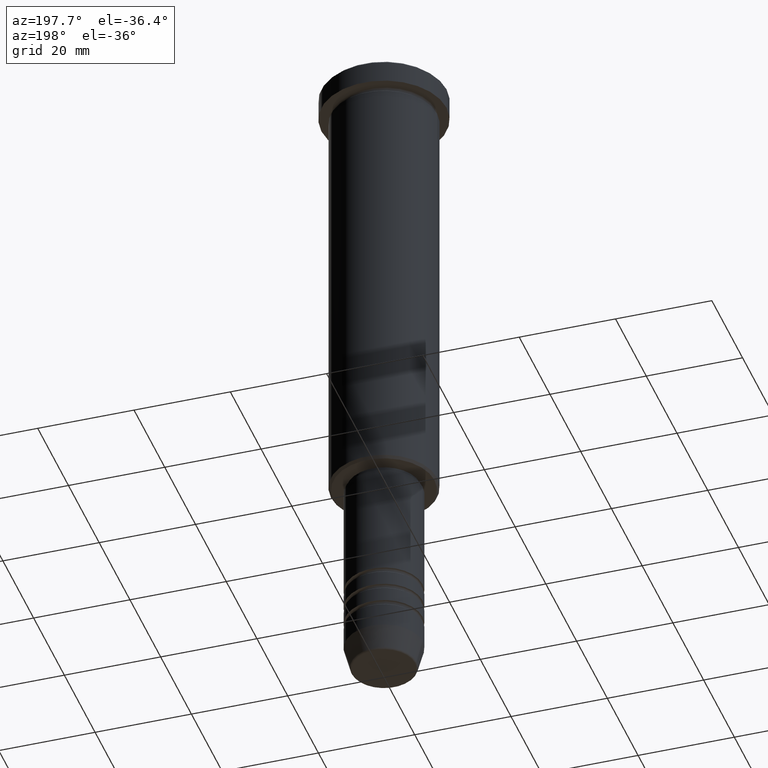
[diagram: clean part render]
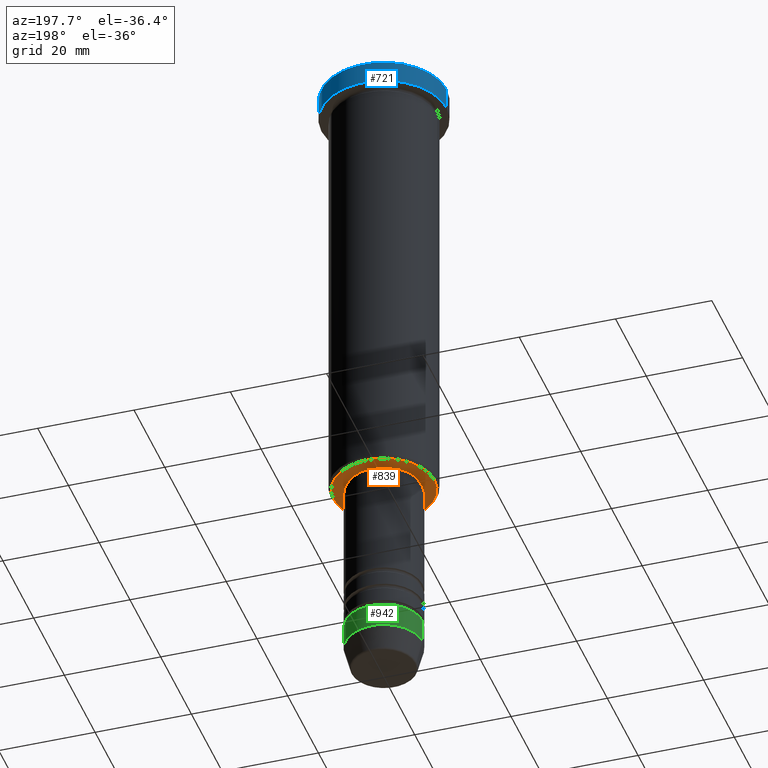
[diagram: same view with three faces highlighted in distinct colors, each labeled with its STEP entity id]
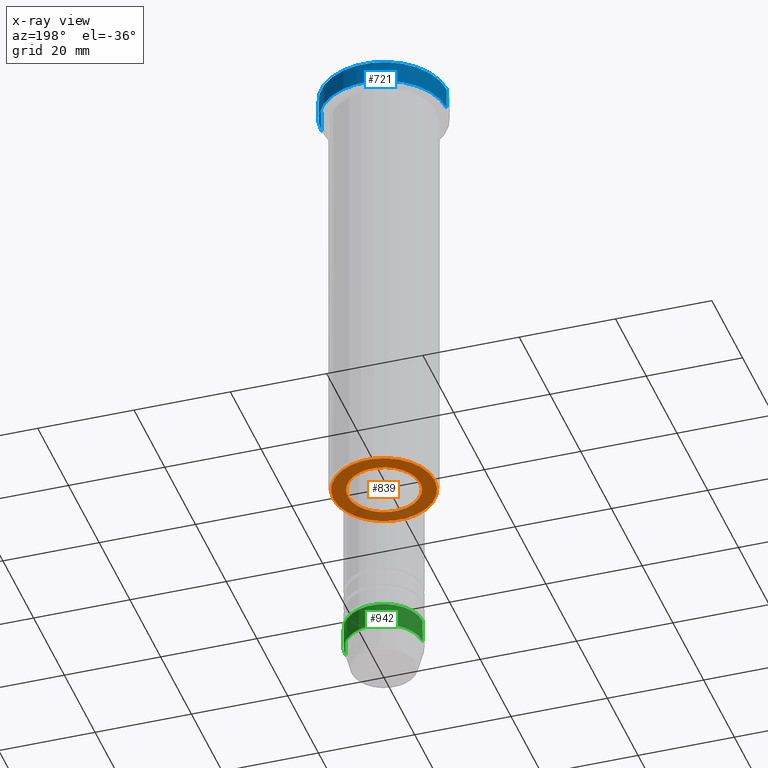
[diagram: x-ray of the same camera — body ghosted, the three highlighted faces saturated]
A machine part, auxiliary view with three faces highlighted in distinct colors.
The next image is the same camera in x-ray (body ghosted, the three faces saturated) — at least one of them is partly hidden behind the body in this view.
Their STEP definitions:

[orange] entity #839 — the highlighted planar face has unit normal (0, 0, -1).
#3 = PLANE ( 'NONE',  #1002 ) ;
#12 = DIRECTION ( 'NONE',  ( -1.000000000000000000, 0.000000000000000000, -0.000000000000000000 ) ) ;
#51 = ORIENTED_EDGE ( 'NONE', *, *, #118, .T. ) ;
#118 = EDGE_CURVE ( 'NONE', #588, #576, #1155, .T. ) ;
#126 = CARTESIAN_POINT ( 'NONE',  ( -7.500000000000000000, 9.184850993605147944E-16, -96.00000000000000000 ) ) ;
#128 = AXIS2_PLACEMENT_3D ( 'NONE', #1147, #509, #150 ) ;
#129 = DIRECTION ( 'NONE',  ( -0.000000000000000000, -0.000000000000000000, 1.000000000000000000 ) ) ;
#150 = DIRECTION ( 'NONE',  ( 1.000000000000000000, 0.000000000000000000, 0.000000000000000000 ) ) ;
#222 = VERTEX_POINT ( 'NONE', #432 ) ;
#283 = FACE_BOUND ( 'NONE', #1173, .T. ) ;
#295 = EDGE_LOOP ( 'NONE', ( #986, #599 ) ) ;
#321 = ORIENTED_EDGE ( 'NONE', *, *, #666, .T. ) ;
#372 = DIRECTION ( 'NONE',  ( -1.000000000000000000, 0.000000000000000000, 0.000000000000000000 ) ) ;
#432 = CARTESIAN_POINT ( 'NONE',  ( 10.50000000000002309, 0.000000000000000000, -96.00000000000000000 ) ) ;
#441 = CIRCLE ( 'NONE', #1079, 10.50000000000002309 ) ;
#457 = CARTESIAN_POINT ( 'NONE',  ( 0.000000000000000000, 0.000000000000000000, -96.00000000000000000 ) ) ;
#509 = DIRECTION ( 'NONE',  ( -0.000000000000000000, -0.000000000000000000, 1.000000000000000000 ) ) ;
#546 = AXIS2_PLACEMENT_3D ( 'NONE', #457, #999, #372 ) ;
#576 = VERTEX_POINT ( 'NONE', #126 ) ;
#588 = VERTEX_POINT ( 'NONE', #671 ) ;
#596 = VERTEX_POINT ( 'NONE', #950 ) ;
#599 = ORIENTED_EDGE ( 'NONE', *, *, #843, .T. ) ;
#606 = CIRCLE ( 'NONE', #546, 10.50000000000002309 ) ;
#666 = EDGE_CURVE ( 'NONE', #576, #588, #964, .T. ) ;
#671 = CARTESIAN_POINT ( 'NONE',  ( 7.500000000000000000, 0.000000000000000000, -96.00000000000000000 ) ) ;
#680 = AXIS2_PLACEMENT_3D ( 'NONE', #759, #129, #1129 ) ;
#759 = CARTESIAN_POINT ( 'NONE',  ( 0.000000000000000000, 0.000000000000000000, -96.00000000000000000 ) ) ;
#825 = EDGE_CURVE ( 'NONE', #222, #596, #441, .T. ) ;
#839 = ADVANCED_FACE ( 'NONE', ( #1105, #283 ), #3, .T. ) ;
#843 = EDGE_CURVE ( 'NONE', #596, #222, #606, .T. ) ;
#896 = DIRECTION ( 'NONE',  ( 0.000000000000000000, 0.000000000000000000, -1.000000000000000000 ) ) ;
#911 = CARTESIAN_POINT ( 'NONE',  ( 0.000000000000000000, 0.000000000000000000, -96.00000000000000000 ) ) ;
#917 = CARTESIAN_POINT ( 'NONE',  ( 0.000000000000000000, 11.00000000000000000, -96.00000000000000000 ) ) ;
#950 = CARTESIAN_POINT ( 'NONE',  ( -10.50000000000002309, 1.316495309083405998E-15, -96.00000000000000000 ) ) ;
#964 = CIRCLE ( 'NONE', #128, 7.500000000000000000 ) ;
#986 = ORIENTED_EDGE ( 'NONE', *, *, #825, .T. ) ;
#999 = DIRECTION ( 'NONE',  ( 0.000000000000000000, 0.000000000000000000, -1.000000000000000000 ) ) ;
#1002 = AXIS2_PLACEMENT_3D ( 'NONE', #917, #1010, #12 ) ;
#1010 = DIRECTION ( 'NONE',  ( 0.000000000000000000, 0.000000000000000000, -1.000000000000000000 ) ) ;
#1079 = AXIS2_PLACEMENT_3D ( 'NONE', #911, #896, #1092 ) ;
#1092 = DIRECTION ( 'NONE',  ( -1.000000000000000000, 0.000000000000000000, 0.000000000000000000 ) ) ;
#1105 = FACE_OUTER_BOUND ( 'NONE', #295, .T. ) ;
#1129 = DIRECTION ( 'NONE',  ( 1.000000000000000000, 0.000000000000000000, 0.000000000000000000 ) ) ;
#1147 = CARTESIAN_POINT ( 'NONE',  ( 0.000000000000000000, 0.000000000000000000, -96.00000000000000000 ) ) ;
#1155 = CIRCLE ( 'NONE', #680, 7.500000000000000000 ) ;
#1173 = EDGE_LOOP ( 'NONE', ( #51, #321 ) ) ;

[blue] entity #721 — the highlighted cylindrical surface (partial cylindrical patch) has radius 13 mm, axis along (-0, -0, 1).
#9 = CARTESIAN_POINT ( 'NONE',  ( -13.00000000000000000, 1.592040838891559095E-15, -5.000000000000000000 ) ) ;
#10 = VERTEX_POINT ( 'NONE', #716 ) ;
#56 = CARTESIAN_POINT ( 'NONE',  ( 0.000000000000000000, 0.000000000000000000, -5.000000000000000000 ) ) ;
#64 = EDGE_CURVE ( 'NONE', #916, #10, #854, .T. ) ;
#89 = ORIENTED_EDGE ( 'NONE', *, *, #250, .T. ) ;
#92 = AXIS2_PLACEMENT_3D ( 'NONE', #56, #685, #971 ) ;
#149 = CIRCLE ( 'NONE', #727, 13.00000000000000000 ) ;
#154 = EDGE_LOOP ( 'NONE', ( #89, #316, #871, #939 ) ) ;
#171 = FACE_OUTER_BOUND ( 'NONE', #154, .T. ) ;
#207 = DIRECTION ( 'NONE',  ( -0.000000000000000000, -0.000000000000000000, 1.000000000000000000 ) ) ;
#225 = CARTESIAN_POINT ( 'NONE',  ( 13.00000000000000000, 0.000000000000000000, 0.000000000000000000 ) ) ;
#250 = EDGE_CURVE ( 'NONE', #916, #636, #760, .T. ) ;
#314 = LINE ( 'NONE', #502, #795 ) ;
#316 = ORIENTED_EDGE ( 'NONE', *, *, #629, .T. ) ;
#329 = CARTESIAN_POINT ( 'NONE',  ( 0.000000000000000000, 0.000000000000000000, -0.4999999999999935052 ) ) ;
#443 = DIRECTION ( 'NONE',  ( -0.000000000000000000, -0.000000000000000000, 1.000000000000000000 ) ) ;
#465 = CARTESIAN_POINT ( 'NONE',  ( 13.00000000000000000, 0.000000000000000000, -5.000000000000000000 ) ) ;
#486 = DIRECTION ( 'NONE',  ( -0.000000000000000000, -0.000000000000000000, 1.000000000000000000 ) ) ;
#502 = CARTESIAN_POINT ( 'NONE',  ( -13.00000000000000000, 1.592040838891559095E-15, 0.000000000000000000 ) ) ;
#620 = DIRECTION ( 'NONE',  ( 1.000000000000000000, 0.000000000000000000, 0.000000000000000000 ) ) ;
#629 = EDGE_CURVE ( 'NONE', #636, #906, #314, .T. ) ;
#636 = VERTEX_POINT ( 'NONE', #9 ) ;
#685 = DIRECTION ( 'NONE',  ( -0.000000000000000000, -0.000000000000000000, 1.000000000000000000 ) ) ;
#716 = CARTESIAN_POINT ( 'NONE',  ( 13.00000000000000000, 0.000000000000000000, -0.4999999999999935052 ) ) ;
#721 = ADVANCED_FACE ( 'NONE', ( #171 ), #1077, .T. ) ;
#727 = AXIS2_PLACEMENT_3D ( 'NONE', #329, #1014, #762 ) ;
#760 = CIRCLE ( 'NONE', #92, 13.00000000000000000 ) ;
#762 = DIRECTION ( 'NONE',  ( 1.000000000000000000, 0.000000000000000000, 0.000000000000000000 ) ) ;
#795 = VECTOR ( 'NONE', #486, 1000.000000000000000 ) ;
#812 = CARTESIAN_POINT ( 'NONE',  ( -13.00000000000000000, 1.592040838891559095E-15, -0.4999999999999935052 ) ) ;
#813 = VECTOR ( 'NONE', #207, 1000.000000000000000 ) ;
#854 = LINE ( 'NONE', #225, #813 ) ;
#871 = ORIENTED_EDGE ( 'NONE', *, *, #976, .T. ) ;
#906 = VERTEX_POINT ( 'NONE', #812 ) ;
#916 = VERTEX_POINT ( 'NONE', #465 ) ;
#939 = ORIENTED_EDGE ( 'NONE', *, *, #64, .F. ) ;
#971 = DIRECTION ( 'NONE',  ( 1.000000000000000000, 0.000000000000000000, 0.000000000000000000 ) ) ;
#973 = CARTESIAN_POINT ( 'NONE',  ( 0.000000000000000000, 0.000000000000000000, 0.000000000000000000 ) ) ;
#976 = EDGE_CURVE ( 'NONE', #906, #10, #149, .T. ) ;
#1014 = DIRECTION ( 'NONE',  ( 0.000000000000000000, 0.000000000000000000, -1.000000000000000000 ) ) ;
#1060 = AXIS2_PLACEMENT_3D ( 'NONE', #973, #443, #620 ) ;
#1077 = CYLINDRICAL_SURFACE ( 'NONE', #1060, 13.00000000000000000 ) ;

[green] entity #942 — the highlighted cylindrical surface (partial cylindrical patch) has radius 8 mm, axis along (-0, -0, 1).
#1 = EDGE_LOOP ( 'NONE', ( #136, #24, #698, #395 ) ) ;
#21 = VERTEX_POINT ( 'NONE', #816 ) ;
#24 = ORIENTED_EDGE ( 'NONE', *, *, #824, .T. ) ;
#59 = CARTESIAN_POINT ( 'NONE',  ( -8.000000000000000000, 9.797174393178825657E-16, 0.000000000000000000 ) ) ;
#105 = DIRECTION ( 'NONE',  ( -0.000000000000000000, -0.000000000000000000, 1.000000000000000000 ) ) ;
#136 = ORIENTED_EDGE ( 'NONE', *, *, #155, .T. ) ;
#155 = EDGE_CURVE ( 'NONE', #612, #481, #1056, .T. ) ;
#187 = CARTESIAN_POINT ( 'NONE',  ( 0.000000000000000000, 0.000000000000000000, -130.0000000000000000 ) ) ;
#251 = EDGE_CURVE ( 'NONE', #612, #21, #690, .T. ) ;
#274 = CARTESIAN_POINT ( 'NONE',  ( -8.000000000000000000, 9.797174393178825657E-16, -135.0000000000000000 ) ) ;
#395 = ORIENTED_EDGE ( 'NONE', *, *, #251, .F. ) ;
#403 = DIRECTION ( 'NONE',  ( -0.000000000000000000, -0.000000000000000000, 1.000000000000000000 ) ) ;
#452 = DIRECTION ( 'NONE',  ( 1.000000000000000000, 0.000000000000000000, 0.000000000000000000 ) ) ;
#462 = EDGE_CURVE ( 'NONE', #21, #752, #851, .T. ) ;
#474 = FACE_OUTER_BOUND ( 'NONE', #1, .T. ) ;
#481 = VERTEX_POINT ( 'NONE', #274 ) ;
#487 = CARTESIAN_POINT ( 'NONE',  ( 0.000000000000000000, 0.000000000000000000, -135.0000000000000000 ) ) ;
#503 = DIRECTION ( 'NONE',  ( -0.000000000000000000, -0.000000000000000000, 1.000000000000000000 ) ) ;
#510 = AXIS2_PLACEMENT_3D ( 'NONE', #487, #403, #767 ) ;
#590 = CARTESIAN_POINT ( 'NONE',  ( 8.000000000000000000, 0.000000000000000000, -135.0000000000000000 ) ) ;
#601 = LINE ( 'NONE', #59, #869 ) ;
#612 = VERTEX_POINT ( 'NONE', #590 ) ;
#626 = AXIS2_PLACEMENT_3D ( 'NONE', #740, #735, #1108 ) ;
#640 = DIRECTION ( 'NONE',  ( -0.000000000000000000, -0.000000000000000000, 1.000000000000000000 ) ) ;
#682 = AXIS2_PLACEMENT_3D ( 'NONE', #187, #640, #452 ) ;
#690 = LINE ( 'NONE', #694, #830 ) ;
#694 = CARTESIAN_POINT ( 'NONE',  ( 8.000000000000000000, 0.000000000000000000, 0.000000000000000000 ) ) ;
#698 = ORIENTED_EDGE ( 'NONE', *, *, #462, .F. ) ;
#735 = DIRECTION ( 'NONE',  ( -0.000000000000000000, -0.000000000000000000, 1.000000000000000000 ) ) ;
#740 = CARTESIAN_POINT ( 'NONE',  ( 0.000000000000000000, 0.000000000000000000, 0.000000000000000000 ) ) ;
#752 = VERTEX_POINT ( 'NONE', #788 ) ;
#767 = DIRECTION ( 'NONE',  ( 1.000000000000000000, 0.000000000000000000, 0.000000000000000000 ) ) ;
#788 = CARTESIAN_POINT ( 'NONE',  ( -8.000000000000000000, 9.797174393178825657E-16, -130.0000000000000000 ) ) ;
#816 = CARTESIAN_POINT ( 'NONE',  ( 8.000000000000000000, 0.000000000000000000, -130.0000000000000000 ) ) ;
#820 = CYLINDRICAL_SURFACE ( 'NONE', #626, 8.000000000000000000 ) ;
#824 = EDGE_CURVE ( 'NONE', #481, #752, #601, .T. ) ;
#830 = VECTOR ( 'NONE', #503, 1000.000000000000000 ) ;
#851 = CIRCLE ( 'NONE', #682, 8.000000000000000000 ) ;
#869 = VECTOR ( 'NONE', #105, 1000.000000000000000 ) ;
#942 = ADVANCED_FACE ( 'NONE', ( #474 ), #820, .T. ) ;
#1056 = CIRCLE ( 'NONE', #510, 8.000000000000000000 ) ;
#1108 = DIRECTION ( 'NONE',  ( 1.000000000000000000, 0.000000000000000000, 0.000000000000000000 ) ) ;